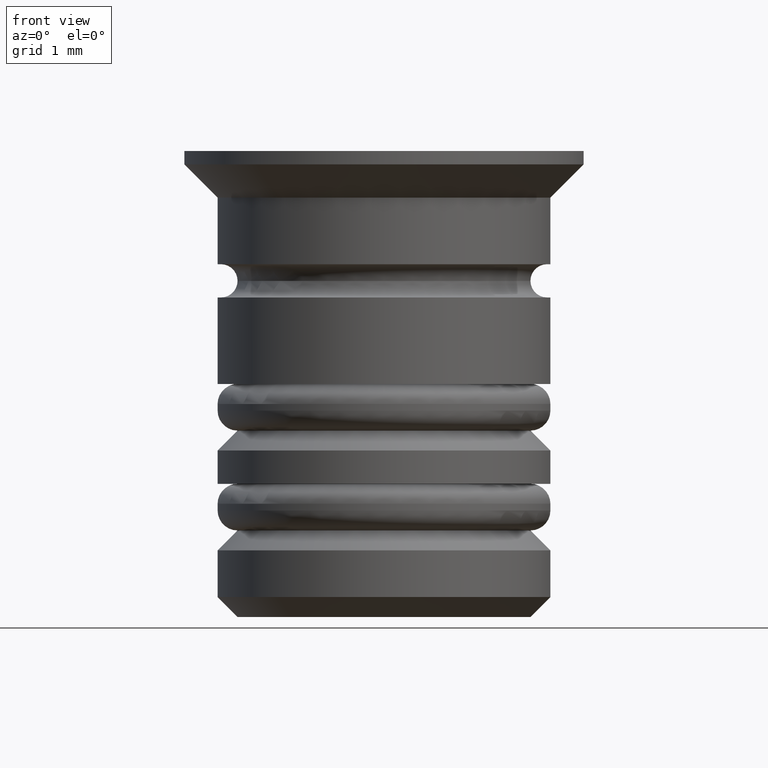
[diagram: clean part render]
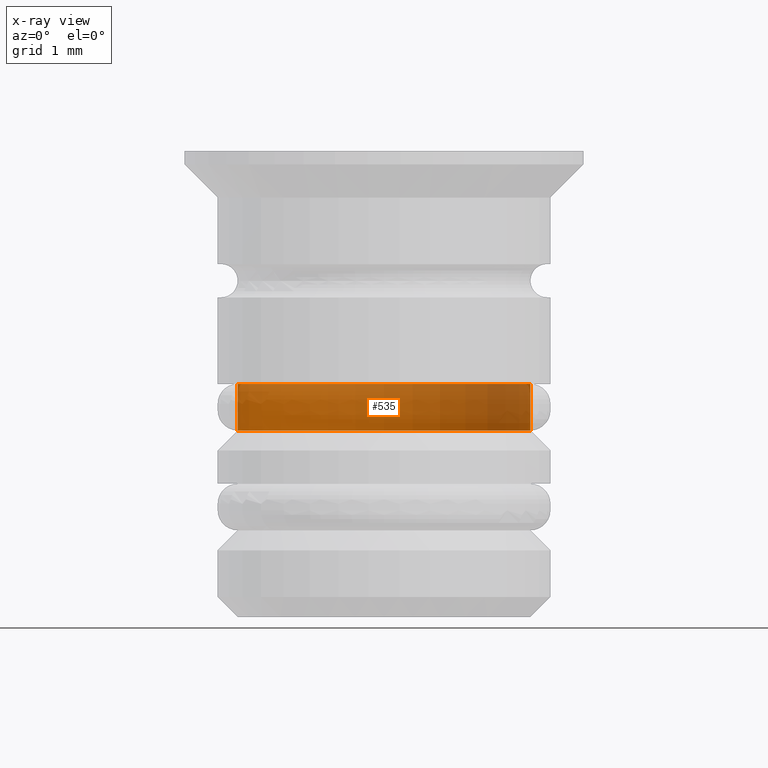
[diagram: x-ray — body ghosted, one internal face saturated and labeled with its STEP entity id]
A machine part, front view, then the same camera in x-ray: the body is ghosted and one INTERNAL B-rep face — a face not visible from any outside direction — is saturated and labeled: STEP entity #535.
In plain terms, the highlighted cylindrical surface (partial cylindrical patch) has radius 2.2 mm, axis along (-0, -0, 1).
Its self-contained STEP definition (entity closure, byte-faithful):
#20 = DIRECTION ( 'NONE',  ( 1.000000000000000000, 0.000000000000000000, 0.000000000000000000 ) ) ;
#66 = VERTEX_POINT ( 'NONE', #123 ) ;
#123 = CARTESIAN_POINT ( 'NONE',  ( 2.200000000000002398, 0.000000000000000000, -4.200000000000010836 ) ) ;
#287 = CARTESIAN_POINT ( 'NONE',  ( 2.200000000000002398, 0.000000000000000000, 0.000000000000000000 ) ) ;
#313 = EDGE_CURVE ( 'NONE', #1811, #964, #1371, .T. ) ;
#535 = ADVANCED_FACE ( 'NONE', ( #872 ), #1280, .T. ) ;
#591 = EDGE_CURVE ( 'NONE', #66, #1811, #1087, .T. ) ;
#619 = CARTESIAN_POINT ( 'NONE',  ( 0.000000000000000000, 0.000000000000000000, -3.500000000000003553 ) ) ;
#631 = DIRECTION ( 'NONE',  ( -0.000000000000000000, -0.000000000000000000, 1.000000000000000000 ) ) ;
#666 = DIRECTION ( 'NONE',  ( -0.000000000000000000, -0.000000000000000000, 1.000000000000000000 ) ) ;
#674 = DIRECTION ( 'NONE',  ( -0.000000000000000000, -0.000000000000000000, 1.000000000000000000 ) ) ;
#715 = EDGE_CURVE ( 'NONE', #66, #1781, #1559, .T. ) ;
#739 = CARTESIAN_POINT ( 'NONE',  ( -2.200000000000001954, 2.694222958124179472E-16, -3.500000000000003553 ) ) ;
#816 = VECTOR ( 'NONE', #666, 1000.000000000000000 ) ;
#868 = ORIENTED_EDGE ( 'NONE', *, *, #313, .T. ) ;
#872 = FACE_OUTER_BOUND ( 'NONE', #1399, .T. ) ;
#880 = DIRECTION ( 'NONE',  ( -0.000000000000000000, -0.000000000000000000, 1.000000000000000000 ) ) ;
#887 = ORIENTED_EDGE ( 'NONE', *, *, #715, .F. ) ;
#900 = CIRCLE ( 'NONE', #1503, 2.200000000000001954 ) ;
#964 = VERTEX_POINT ( 'NONE', #739 ) ;
#1087 = CIRCLE ( 'NONE', #1698, 2.200000000000002398 ) ;
#1089 = ORIENTED_EDGE ( 'NONE', *, *, #591, .T. ) ;
#1155 = DIRECTION ( 'NONE',  ( -0.000000000000000000, -0.000000000000000000, 1.000000000000000000 ) ) ;
#1159 = EDGE_CURVE ( 'NONE', #1781, #964, #900, .T. ) ;
#1240 = CARTESIAN_POINT ( 'NONE',  ( -2.200000000000002398, 2.694222958124179965E-16, -4.200000000000010836 ) ) ;
#1269 = CARTESIAN_POINT ( 'NONE',  ( 2.200000000000001954, 0.000000000000000000, -3.500000000000003553 ) ) ;
#1280 = CYLINDRICAL_SURFACE ( 'NONE', #1677, 2.200000000000002398 ) ;
#1357 = CARTESIAN_POINT ( 'NONE',  ( 0.000000000000000000, 0.000000000000000000, -4.200000000000010836 ) ) ;
#1368 = DIRECTION ( 'NONE',  ( -1.000000000000000000, 0.000000000000000000, 0.000000000000000000 ) ) ;
#1371 = LINE ( 'NONE', #1628, #1723 ) ;
#1399 = EDGE_LOOP ( 'NONE', ( #1089, #868, #1579, #887 ) ) ;
#1434 = CARTESIAN_POINT ( 'NONE',  ( 0.000000000000000000, 0.000000000000000000, 0.000000000000000000 ) ) ;
#1503 = AXIS2_PLACEMENT_3D ( 'NONE', #619, #880, #1751 ) ;
#1559 = LINE ( 'NONE', #287, #816 ) ;
#1579 = ORIENTED_EDGE ( 'NONE', *, *, #1159, .F. ) ;
#1628 = CARTESIAN_POINT ( 'NONE',  ( -2.200000000000002398, 2.694222958124179965E-16, 0.000000000000000000 ) ) ;
#1677 = AXIS2_PLACEMENT_3D ( 'NONE', #1434, #1155, #20 ) ;
#1698 = AXIS2_PLACEMENT_3D ( 'NONE', #1357, #631, #1368 ) ;
#1723 = VECTOR ( 'NONE', #674, 1000.000000000000000 ) ;
#1751 = DIRECTION ( 'NONE',  ( 1.000000000000000000, 0.000000000000000000, 0.000000000000000000 ) ) ;
#1781 = VERTEX_POINT ( 'NONE', #1269 ) ;
#1811 = VERTEX_POINT ( 'NONE', #1240 ) ;